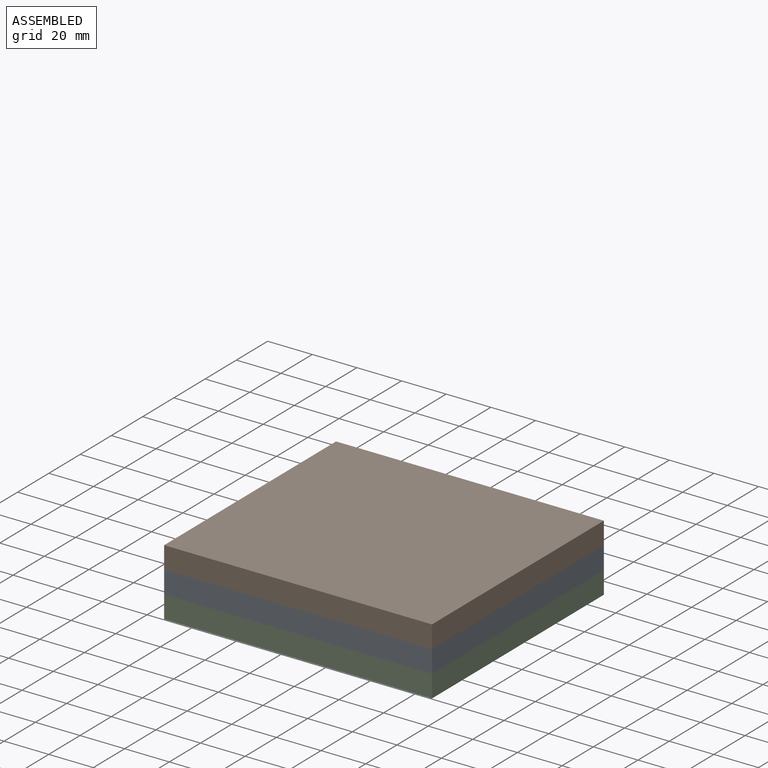
[diagram: assembled view]
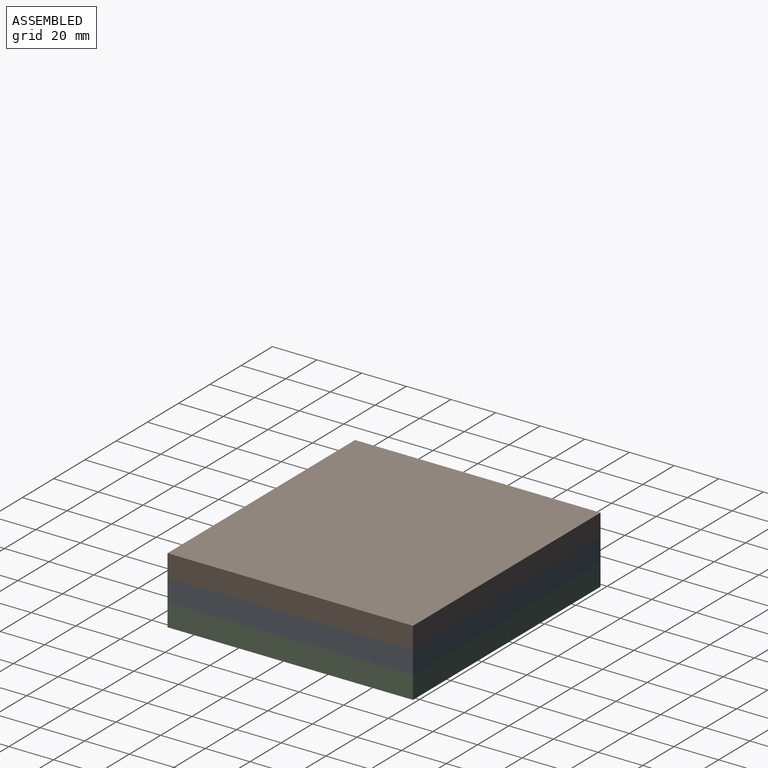
[diagram: assembled view, second angle]
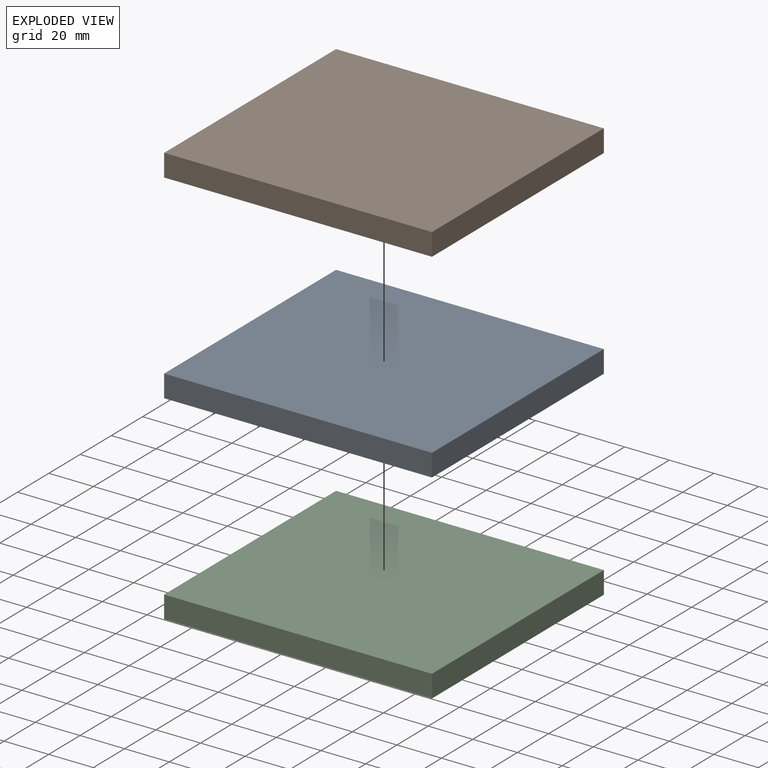
[diagram: exploded view]
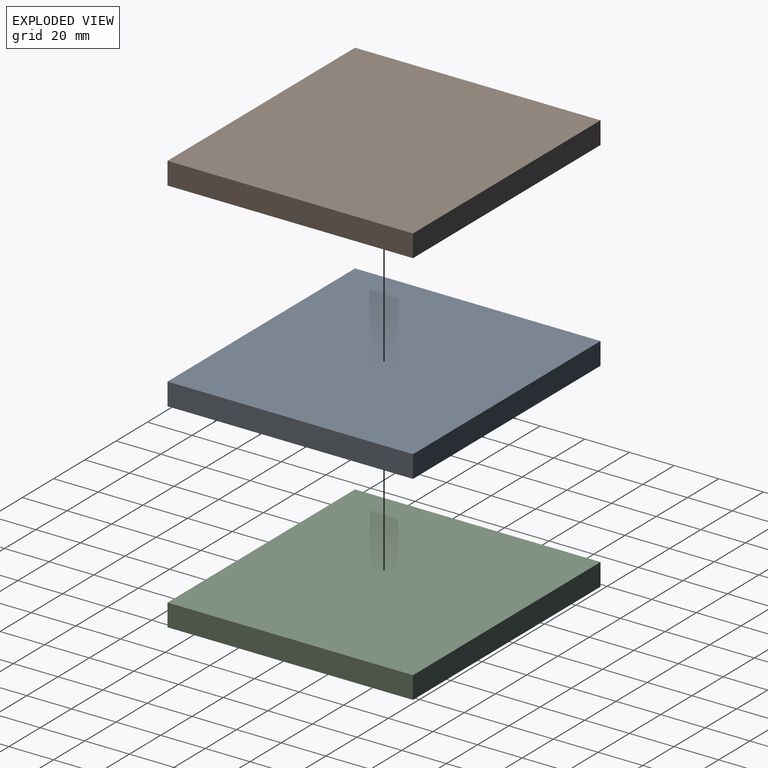
[diagram: exploded view, second angle]
ASSEMBLY  parts=3 mates=2
PART A: 6 faces, bbox 120x110x10 mm
  f0: plane 120x10mm, normal (0,-1,0), area 1200mm2, adj f1,f3,f4,f5
  f1: plane 120x110mm, normal (0,0,-1), area 13200mm2, adj f0,f2,f4,f5
  f2: plane 120x10mm, normal (0,1,0), area 1200mm2, adj f1,f3,f4,f5
  f3: plane 120x110mm, normal (0,0,1), area 13200mm2, adj f0,f2,f4,f5
  f4: plane 110x10mm, normal (1,0,0), area 1100mm2, adj f0,f1,f2,f3
  f5: plane 110x10mm, normal (-1,0,0), area 1100mm2, adj f0,f1,f2,f3
PART B: same geometry as A
PART C: same geometry as A
PLACE A t=(0.64,-18.49,7.25)mm
PLACE B t=(0.64,-18.49,17.25)mm
PLACE C t=(0.64,-18.49,-2.75)mm
MATE fastened B.f1 <-> A.f3  axis (0,0,-1) through (120.64,91.51,17.25)mm
MATE fastened A.f1 <-> C.f3  axis (0,0,-1) through (60.64,36.51,7.25)mm
